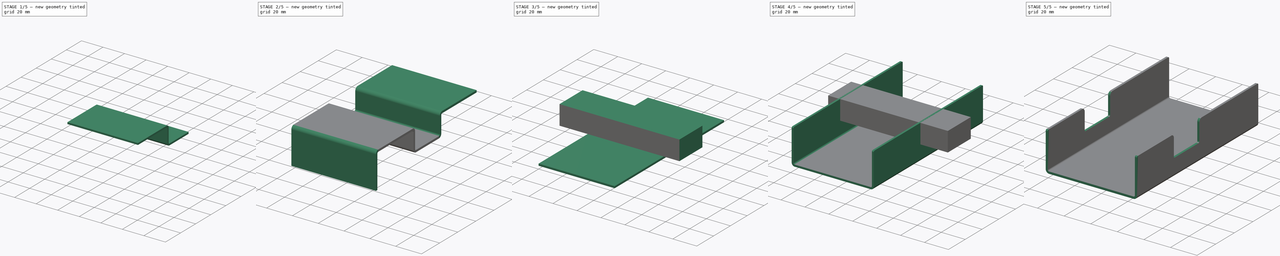
[diagram: build sequence overview — one tinted view per stage of 5, left to right]
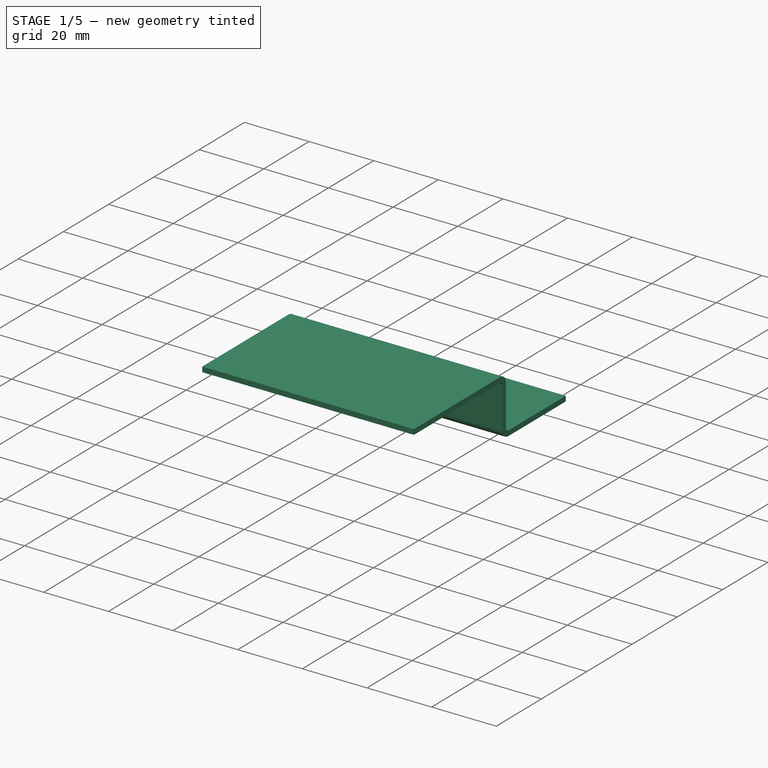
[diagram: stage 1 of 5 — iso view after this stage's code; geometry added in this stage tinted green]
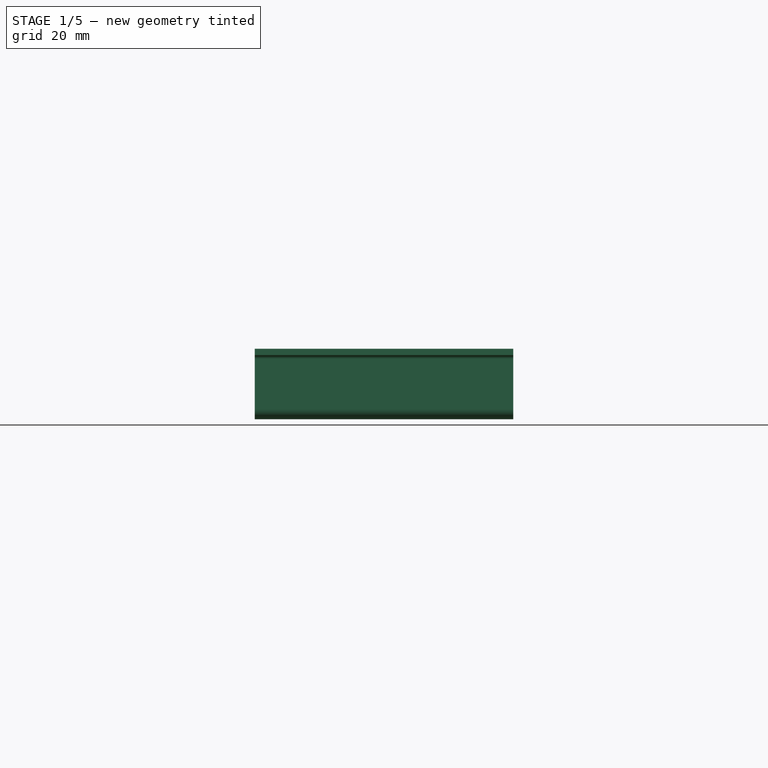
[diagram: stage 1 of 5 — front view after this stage's code; geometry added in this stage tinted green]
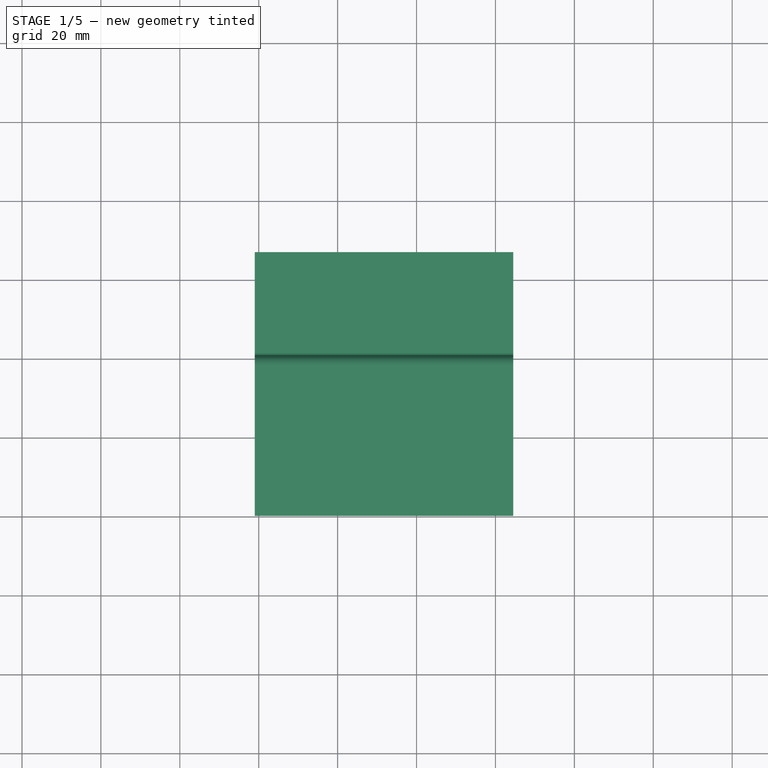
[diagram: stage 1 of 5 — top view after this stage's code; geometry added in this stage tinted green]
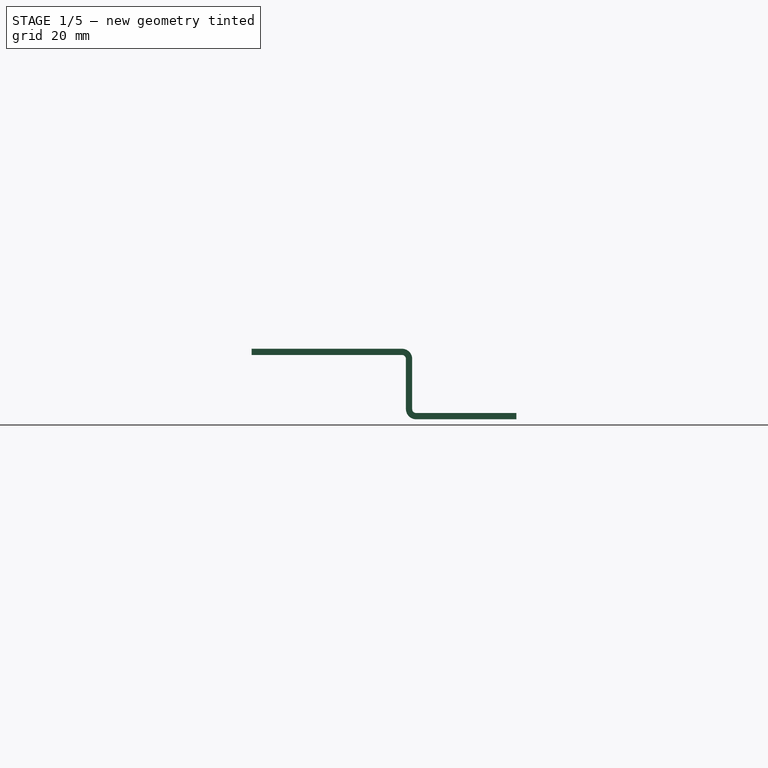
[diagram: stage 1 of 5 — right view after this stage's code; geometry added in this stage tinted green]
FCSTD DOCUMENT  (FreeCAD 0.16RUnknown)
Label: enclosure
License: All rights reserved
LicenseURL: http://en.wikipedia.org/wiki/All_rights_reserved
objects: Part::FeaturePython×8, Part::Fillet×4, App::FeaturePython×3, Part::Box×2, Sketcher::SketchObject×1, Part::Extrusion×1, Part::Cut×1
note: 17 computed .brp shape members not serialized (recipe doc carries the construction recipe); baked Part::Feature solids carry a one-line shape summary decoded from their .brp

FEATURE [Part::Box] Box001  label="Cube001"
  Height = 1.5875
  Length = 65.5
  Placement = pos=(-1,0,26.4) rot=(0,0,1;0rad)
  Width = 38.1
FEATURE [Part::FeaturePython] Bend002  # WARN: FeaturePython — macro-defined, semantics opaque (R4)
  angle = 90
  baseObject = -> Box001 [Face4]
  gap1 = 0
  gap2 = 0
  invert = true
  length = 12.7
  radius = 1
  reliefd = 1
  reliefw = 0.5
FEATURE [Part::FeaturePython] Bend003  # WARN: FeaturePython — macro-defined, semantics opaque (R4)
  angle = 90
  baseObject = -> Bend002 [Face1]
  gap1 = 0
  gap2 = 0
  invert = false
  length = 25.4
  radius = 1
  reliefd = 1
  reliefw = 0.5
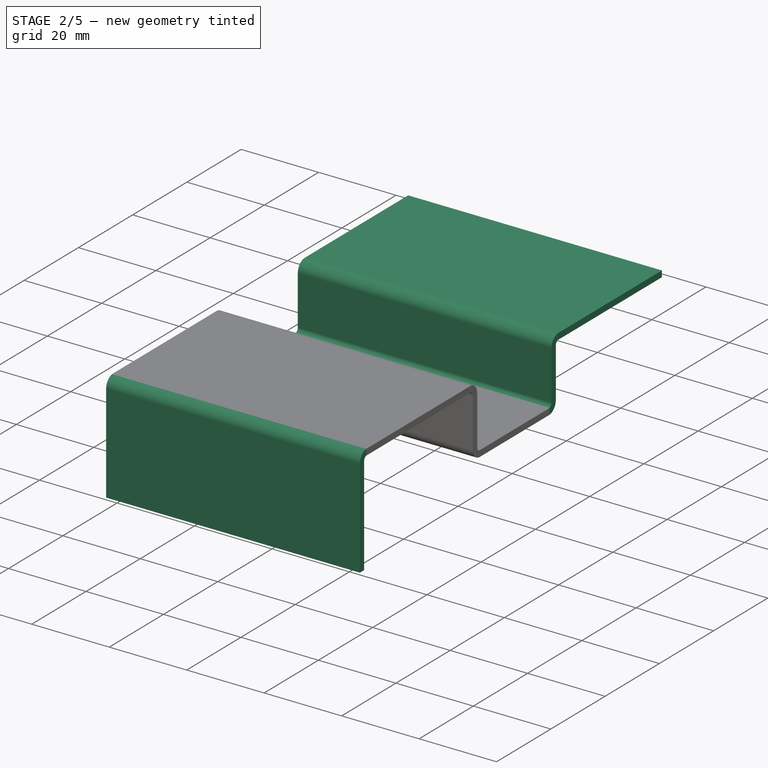
[diagram: stage 2 of 5 — iso view after this stage's code; geometry added in this stage tinted green]
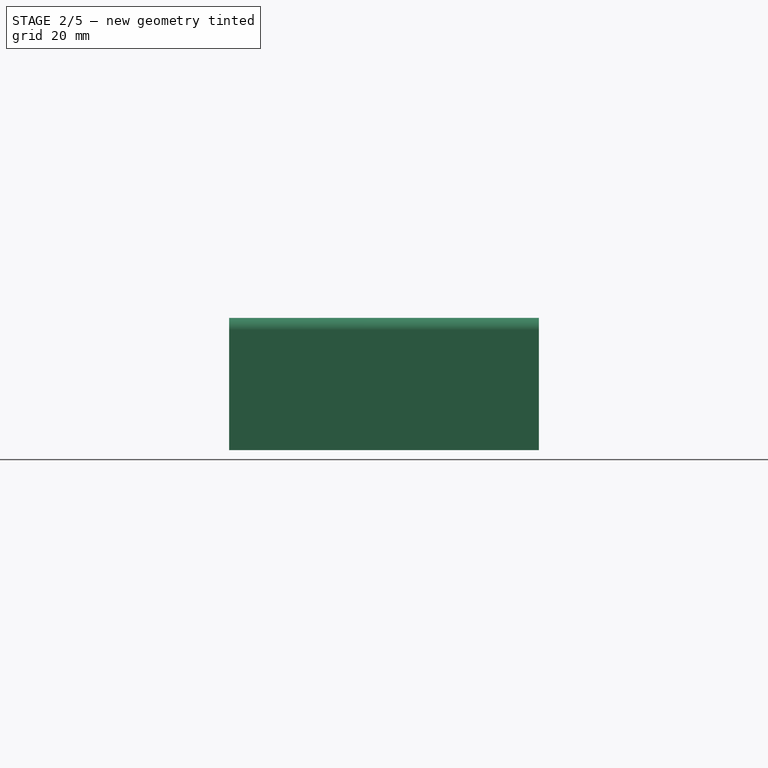
[diagram: stage 2 of 5 — front view after this stage's code; geometry added in this stage tinted green]
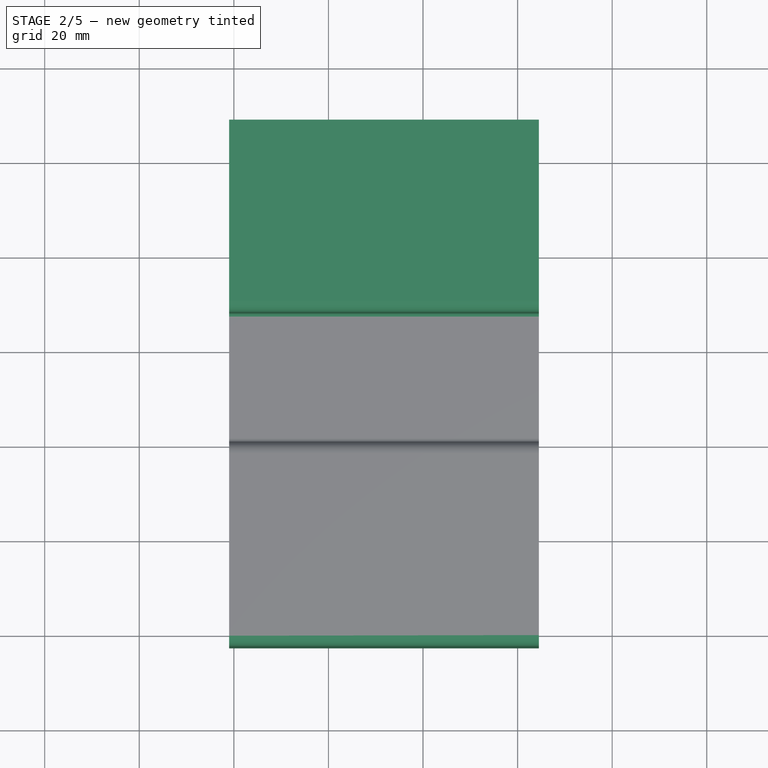
[diagram: stage 2 of 5 — top view after this stage's code; geometry added in this stage tinted green]
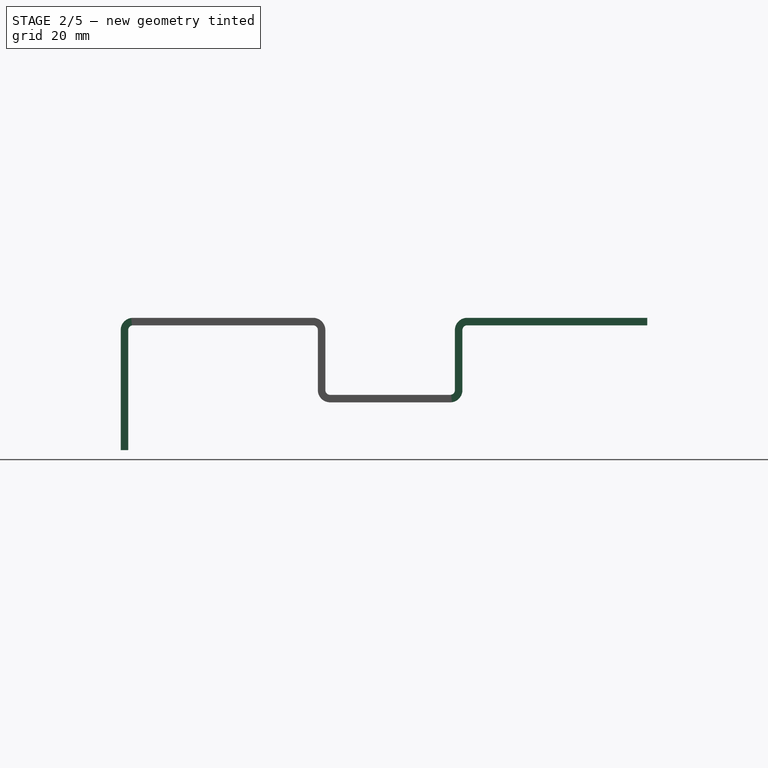
[diagram: stage 2 of 5 — right view after this stage's code; geometry added in this stage tinted green]
FEATURE [Part::FeaturePython] Bend004  # WARN: FeaturePython — macro-defined, semantics opaque (R4)
  angle = 90
  baseObject = -> Bend003 [Face1]
  gap1 = 0
  gap2 = 0
  invert = false
  length = 12.7
  radius = 1
  reliefd = 1
  reliefw = 0.5
FEATURE [Part::FeaturePython] Bend005  # WARN: FeaturePython — macro-defined, semantics opaque (R4)
  angle = 90
  baseObject = -> Bend004 [Face1]
  gap1 = 0
  gap2 = 0
  invert = true
  length = 38.1
  radius = 1
  reliefd = 1
  reliefw = 0.5
FEATURE [Part::FeaturePython] Bend006  # WARN: FeaturePython — macro-defined, semantics opaque (R4)
  angle = 90
  baseObject = -> Bend005 [Face38]
  gap1 = 0
  gap2 = 0
  invert = true
  length = 25.4
  radius = 1
  reliefd = 1
  reliefw = 0.5
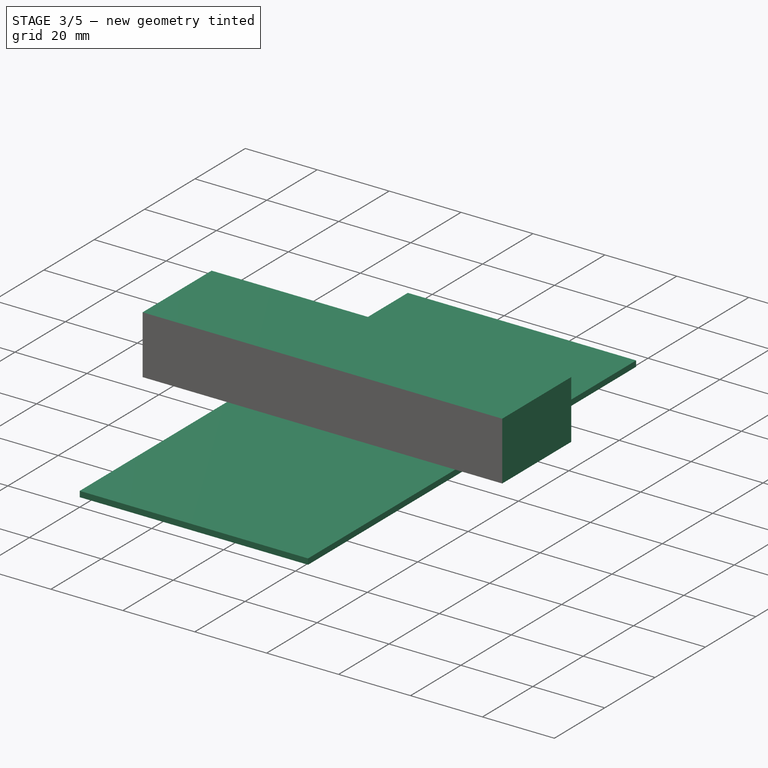
[diagram: stage 3 of 5 — iso view after this stage's code; geometry added in this stage tinted green]
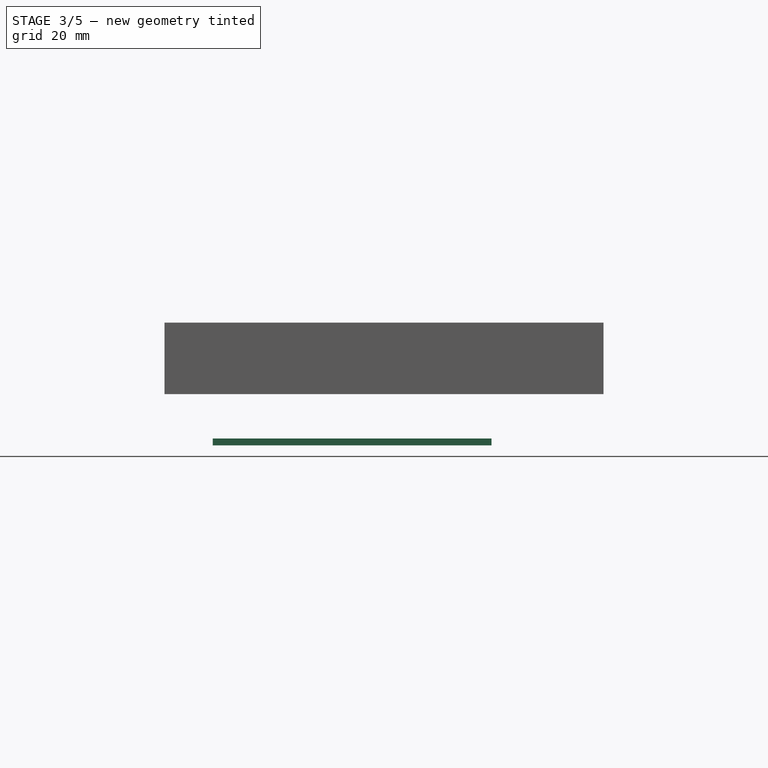
[diagram: stage 3 of 5 — front view after this stage's code; geometry added in this stage tinted green]
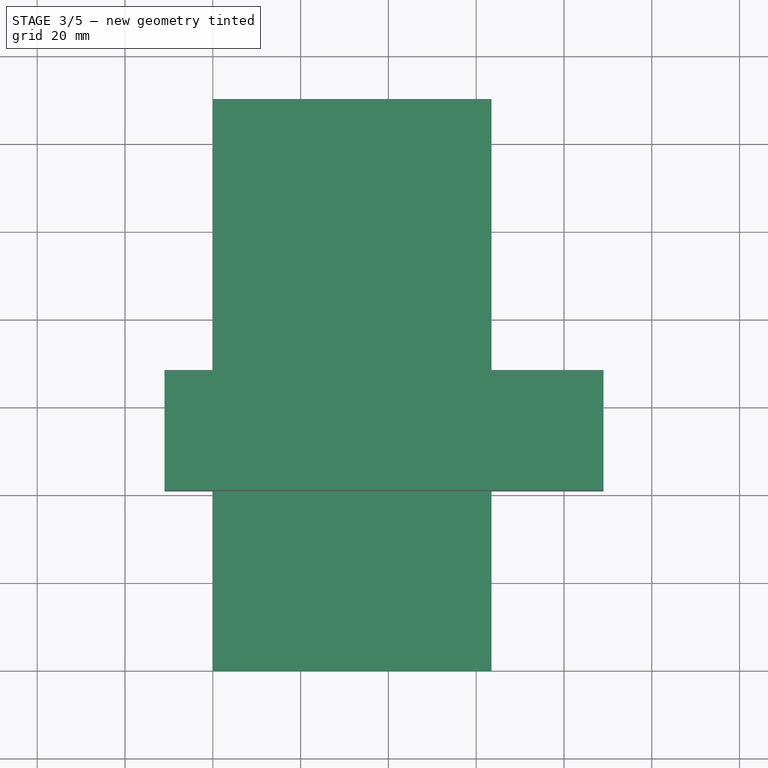
[diagram: stage 3 of 5 — top view after this stage's code; geometry added in this stage tinted green]
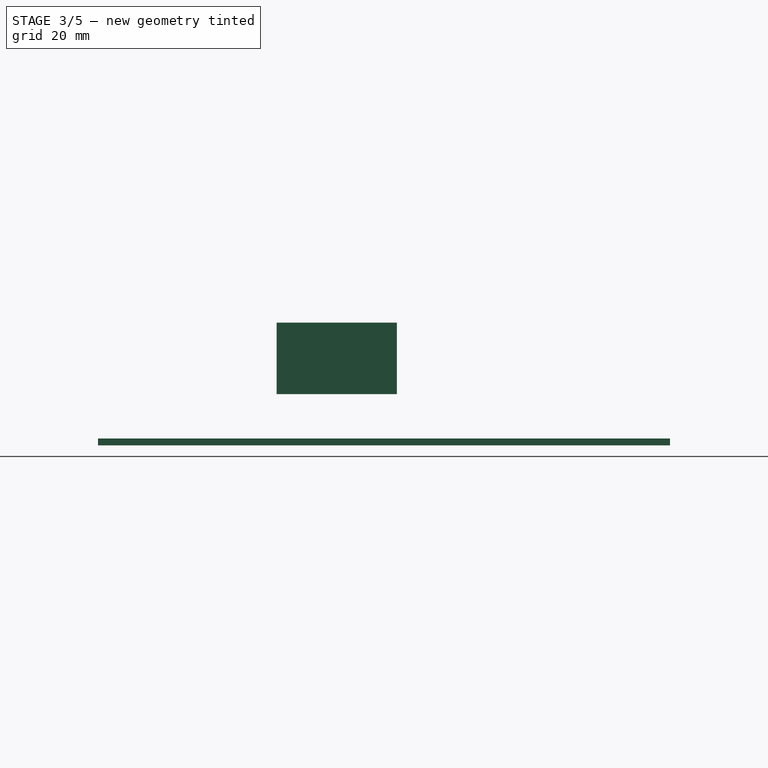
[diagram: stage 3 of 5 — right view after this stage's code; geometry added in this stage tinted green]
FEATURE [Part::Box] Box  label="Cube"
  Height = 1.5875
  Length = 63.5
  Width = 130.3
FEATURE [Part::FeaturePython] Bend007  # WARN: FeaturePython — macro-defined, semantics opaque (R4)
  angle = 90
  baseObject = -> Bend006 [Face46]
  gap1 = 0
  gap2 = 0
  invert = true
  length = 25.4
  radius = 1
  reliefd = 1
  reliefw = 0.5
FEATURE [Part::Fillet] Fillet  label="Top"
  Base = -> Bend007
  Edges = 4 edges r=1: [Edge2,Edge4,Edge105,Edge108]
FEATURE [App::FeaturePython] planeConstraint01  label="Top Bottom Z"  # a2plus constraint (typed FeaturePython)
  Object1 = Fillet
  Object2 = Fillet001
  SubElement1 = Face57
  SubElement2 = Face11
  Type = plane
  directionConstraint = 0
  offset = 0
FEATURE [App::FeaturePython] planeConstraint02  label="Top Bottom X"  # a2plus constraint (typed FeaturePython)
  Object1 = Fillet
  Object2 = Fillet001
  SubElement1 = Face16
  SubElement2 = Face2
  Type = plane
  directionConstraint = 1
  offset = 0
FEATURE [Sketcher::SketchObject] Sketch
  ExternalGeometry = -> [Fillet]
  Placement = pos=(-1,0,0) rot=(0.57735,-0.57735,-0.57735;2.0944rad)
  Support = -> Fillet [Face47]
  sketch-geometry (4):
    g0: LineSegment StartX=-68.0875 StartY=27.9875 StartZ=0 EndX=-40.6875 EndY=27.9875 EndZ=0
    g1: LineSegment StartX=-40.6875 StartY=27.9875 StartZ=0 EndX=-40.6875 EndY=11.7 EndZ=0
    g2: LineSegment StartX=-40.6875 StartY=11.7 StartZ=0 EndX=-68.0875 EndY=11.7 EndZ=0
    g3: LineSegment StartX=-68.0875 StartY=11.7 StartZ=0 EndX=-68.0875 EndY=27.9875 EndZ=0
  constraints (12):
    c: Coincident(g0,g1)
    c: Coincident(g1,g2)
    c: Coincident(g2,g3)
    c: Coincident(g3,g0)
    c: Horizontal(g0)
    c: Horizontal(g2)
    c: Vertical(g1)
    c: Vertical(g3)
    c: DistanceY(g0,g-6) = 0
    c: DistanceX(g-3,g0) = 0
    c: DistanceX(g0,g-5) = 0
    c: DistanceY(g-4,g2) = 0
FEATURE [Part::Extrusion] Extrude
  Base = -> Sketch
  Dir = (100,0,0)
  Placement = pos=(-10,0,0) rot=(0,0,1;0rad)
  Solid = true
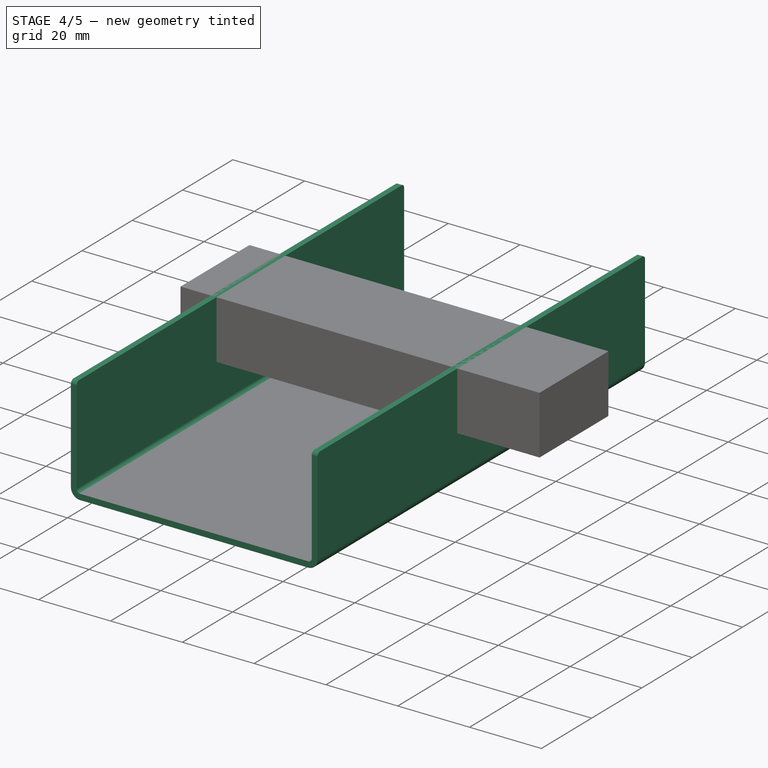
[diagram: stage 4 of 5 — iso view after this stage's code; geometry added in this stage tinted green]
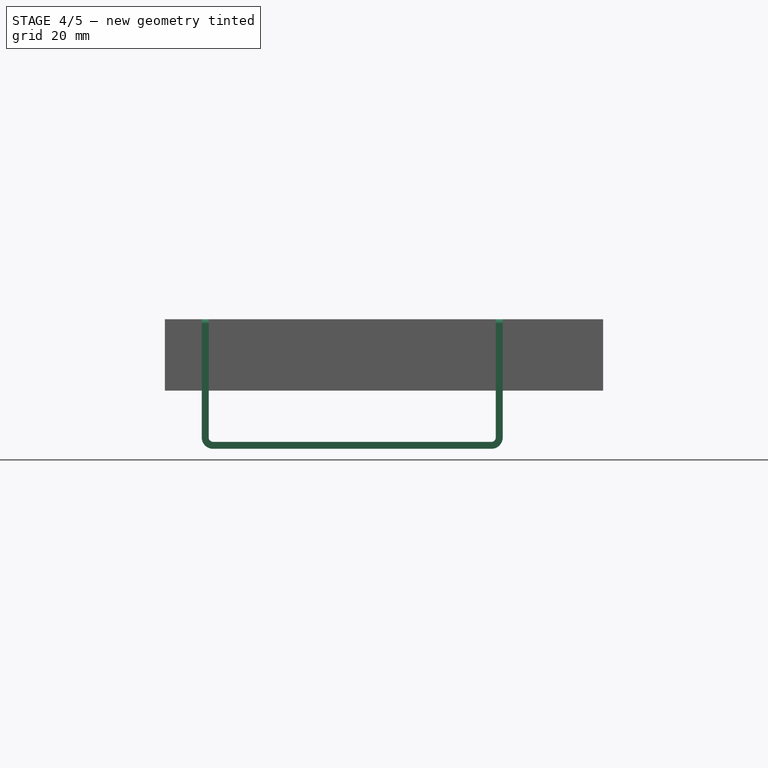
[diagram: stage 4 of 5 — front view after this stage's code; geometry added in this stage tinted green]
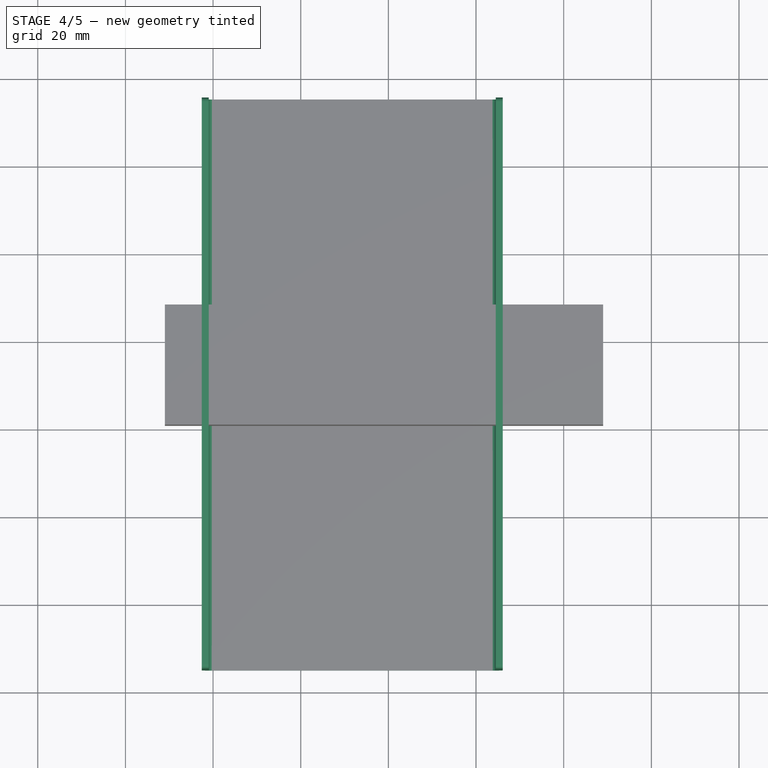
[diagram: stage 4 of 5 — top view after this stage's code; geometry added in this stage tinted green]
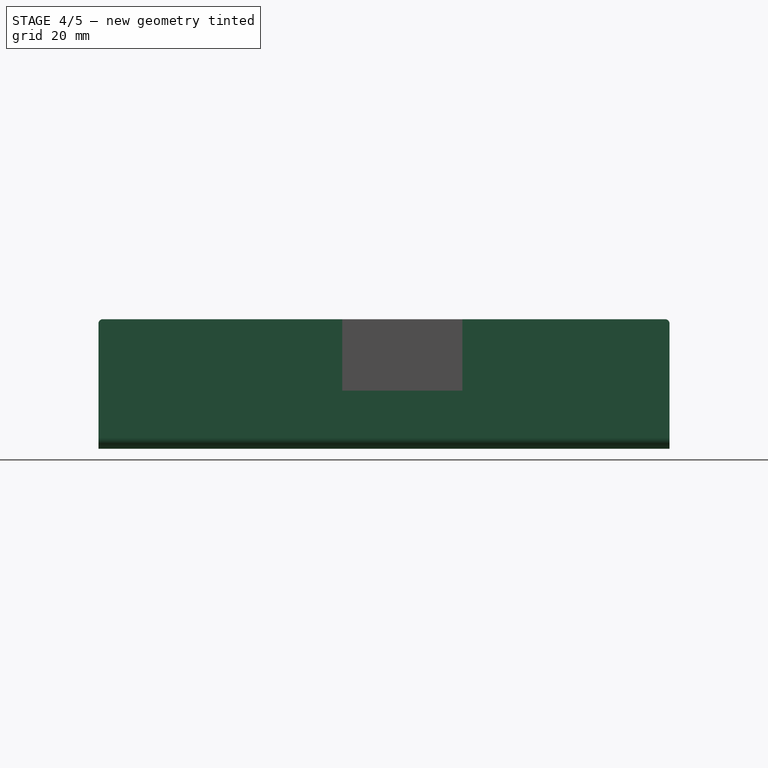
[diagram: stage 4 of 5 — right view after this stage's code; geometry added in this stage tinted green]
FEATURE [Part::FeaturePython] Bend  # WARN: FeaturePython — macro-defined, semantics opaque (R4)
  angle = 90
  baseObject = -> Box [Face2]
  gap1 = 0
  gap2 = 0
  invert = false
  length = 26.9875
  radius = 1
  reliefd = 1
  reliefw = 0.5
FEATURE [Part::FeaturePython] Bend001  # WARN: FeaturePython — macro-defined, semantics opaque (R4)
  angle = 90
  baseObject = -> Bend [Face14]
  gap1 = 0
  gap2 = 0
  invert = false
  length = 26.9875
  radius = 1
  reliefd = 1
  reliefw = 0.5
FEATURE [Part::Fillet] Fillet001  label="Fillet004"
  Base = -> Bend001
  Edges = 4 edges r=1: [Edge1,Edge3,Edge38,Edge42]
  Placement = pos=(0,-14.9375,-1.5875) rot=(0,0,1;0rad)
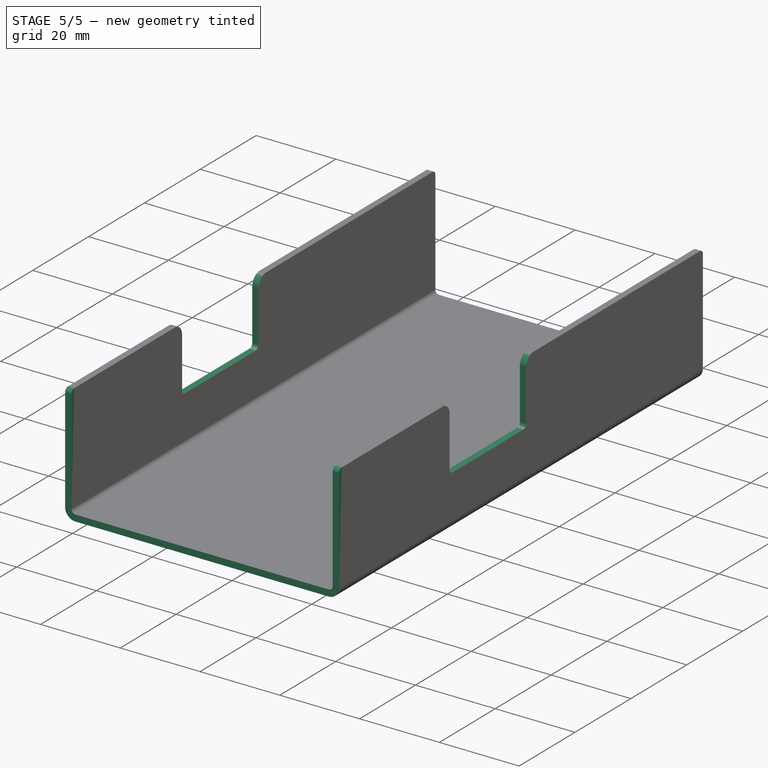
[diagram: stage 5 of 5 — iso view after this stage's code; geometry added in this stage tinted green]
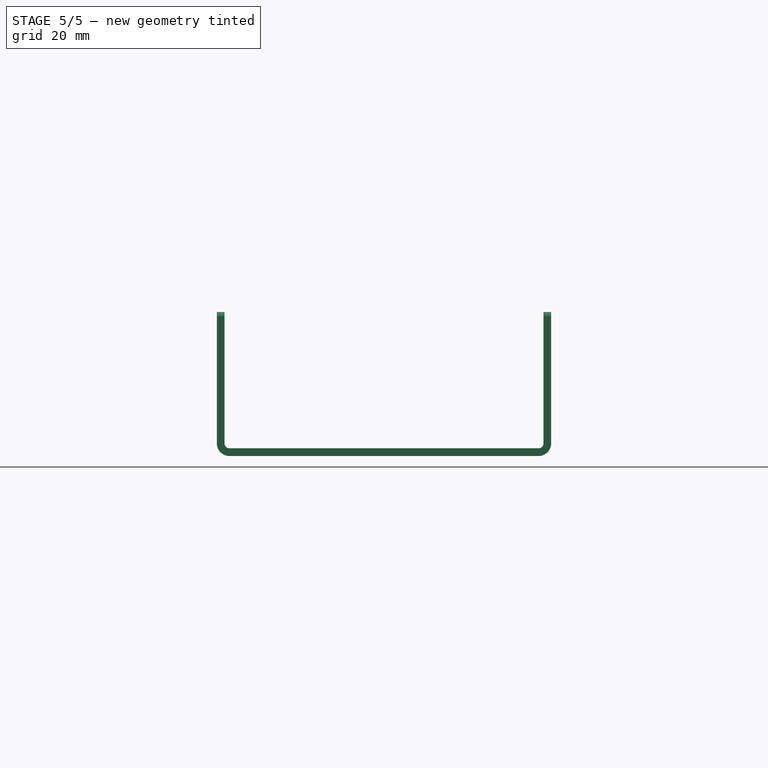
[diagram: stage 5 of 5 — front view after this stage's code; geometry added in this stage tinted green]
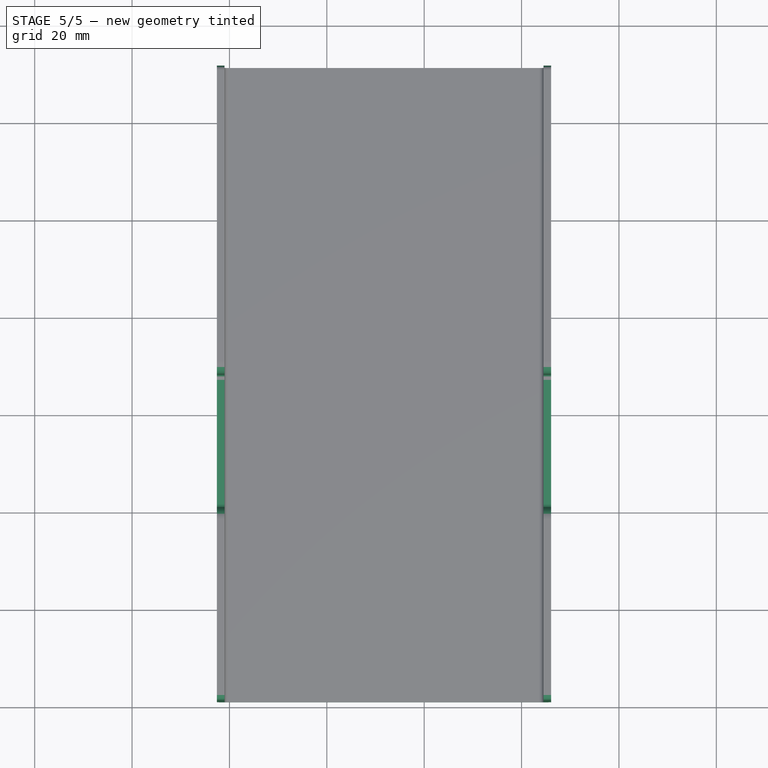
[diagram: stage 5 of 5 — top view after this stage's code; geometry added in this stage tinted green]
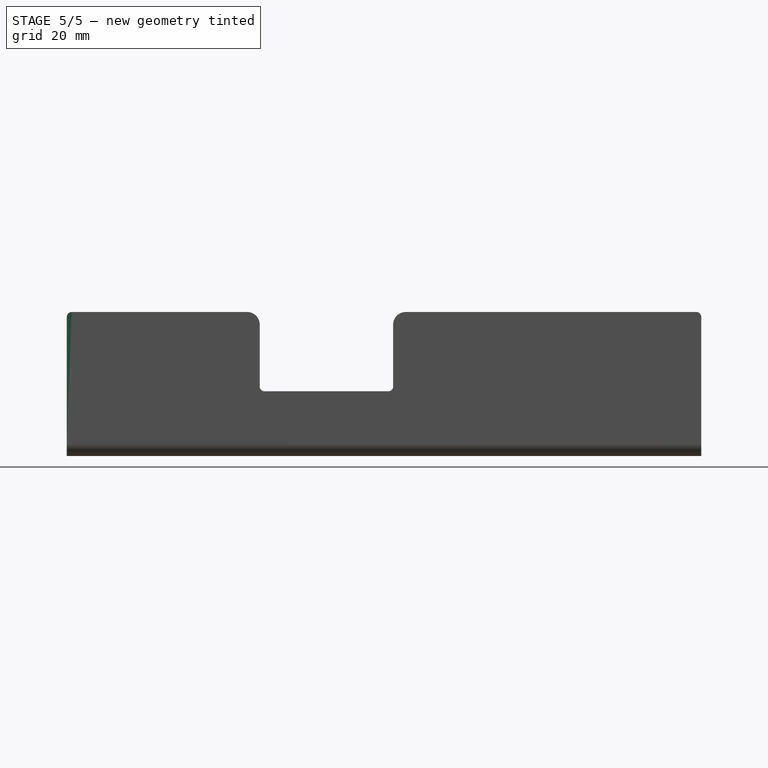
[diagram: stage 5 of 5 — right view after this stage's code; geometry added in this stage tinted green]
FEATURE [Part::Cut] Cut
  Base = -> Fillet001
  Tool = -> Extrude
FEATURE [Part::Fillet] Fillet002
  Base = -> Cut
  Edges = 4 edges r=1: [Edge15,Edge28,Edge77,Edge78]
FEATURE [Part::Fillet] Fillet003  label="Bottom"
  Base = -> Fillet002
  Edges = 4 edges r=2.59: [Edge15,Edge29,Edge75,Edge86]
  Placement = pos=(0,-20,0) rot=(0,0,1;0rad)
FEATURE [App::FeaturePython] planeConstraint04  label="Top Bottom Y"  # a2plus constraint (typed FeaturePython)
  Object1 = Fillet
  Object2 = Fillet003
  SubElement1 = Face5
  SubElement2 = Face21
  Type = plane
  directionConstraint = 1
  offset = 0
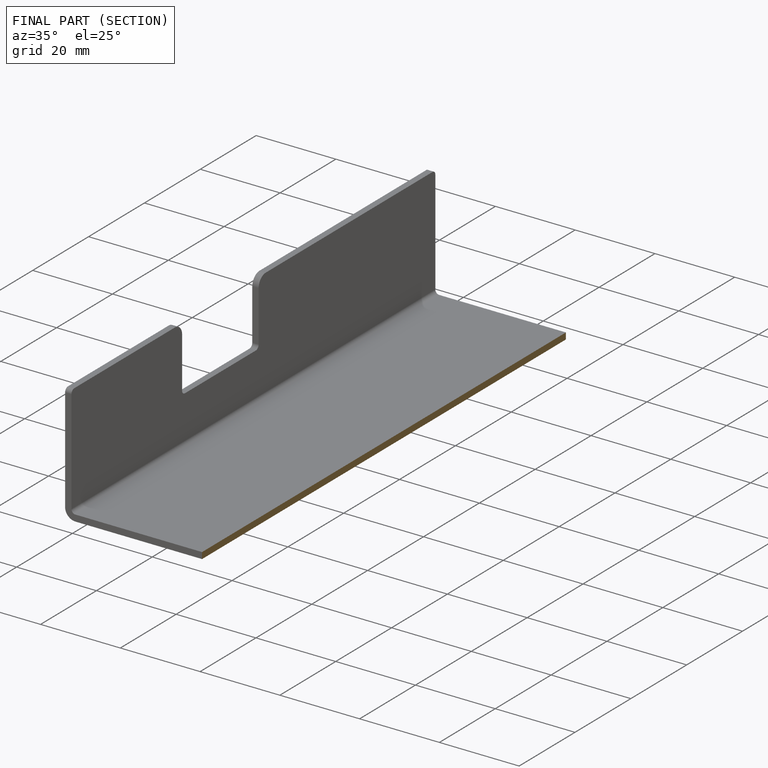
[diagram: finished part — half-section view (interior)]
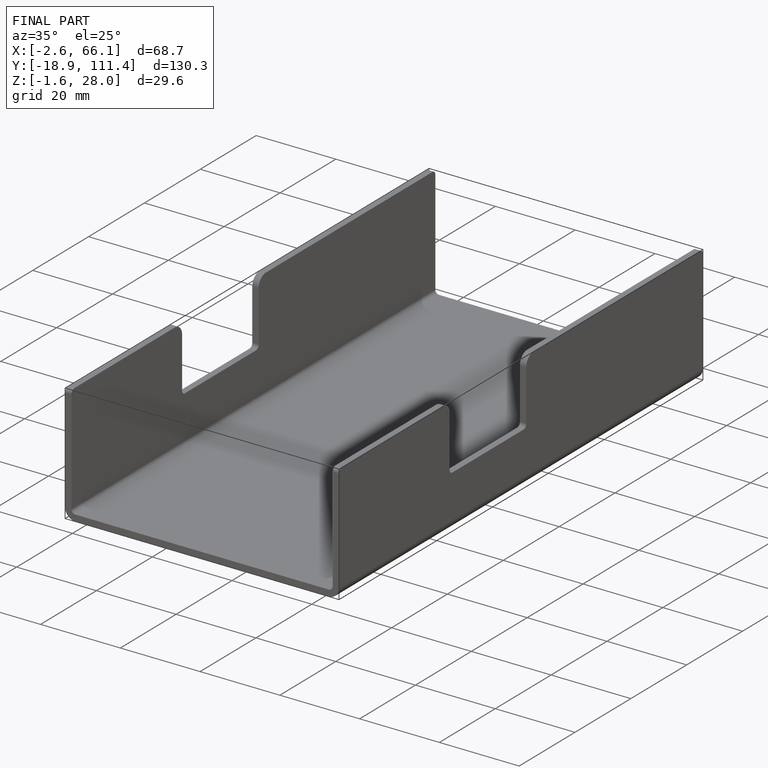
[diagram: finished part — iso view with bounding-box wireframe]
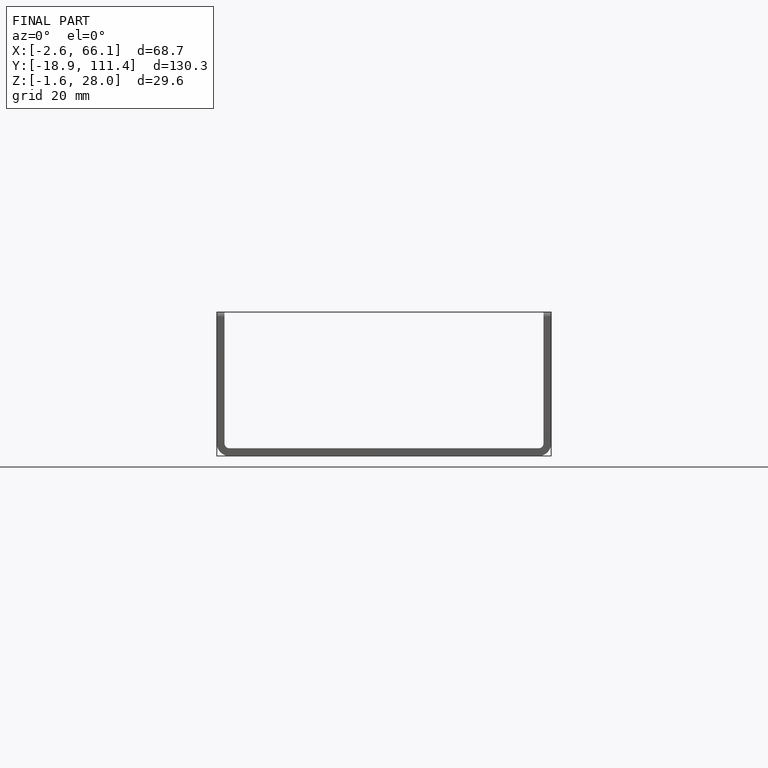
[diagram: finished part — front view with bounding-box wireframe]
